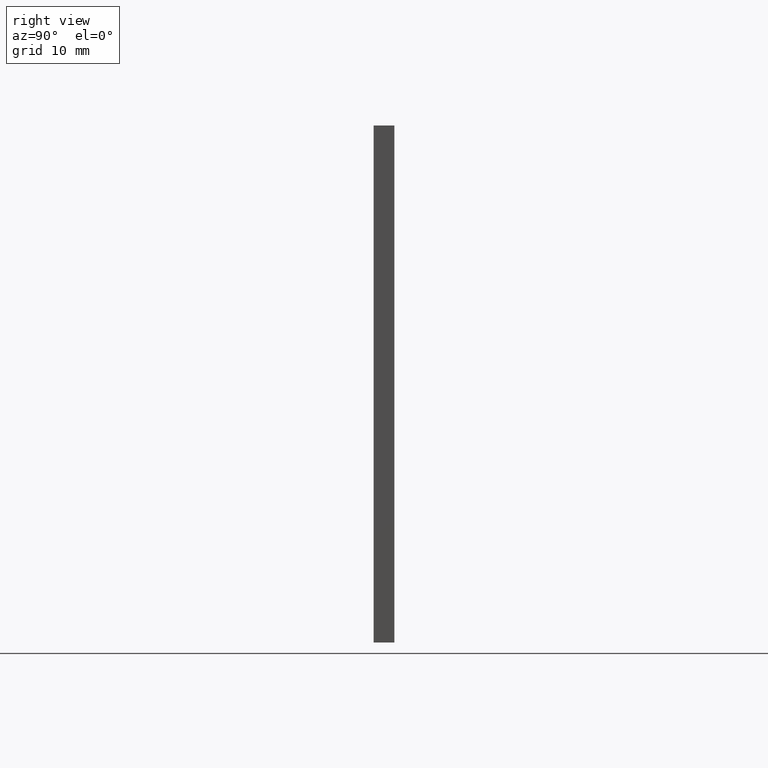
[diagram: clean part render]
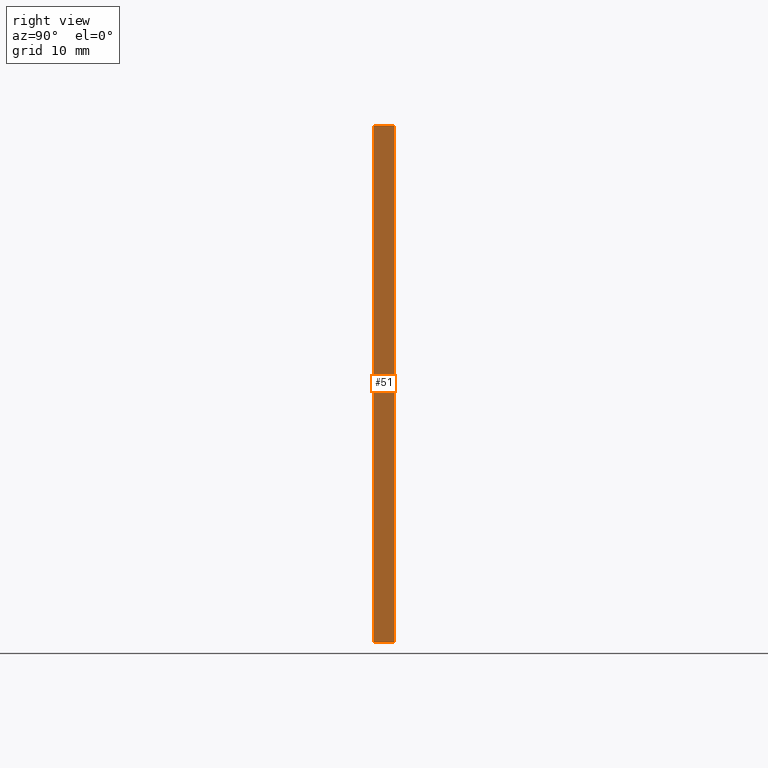
[diagram: same view with one face highlighted and labeled with its STEP entity id]
A machine part, right view. The second image highlights one B-rep face of the part: STEP entity #51.
In plain terms, the highlighted planar face has unit normal (-1, 0, 0).
Its self-contained STEP definition (entity closure, byte-faithful):
#2 = VERTEX_POINT ( 'NONE', #77 ) ;
#8 = PLANE ( 'NONE',  #236 ) ;
#10 = DIRECTION ( 'NONE',  ( 1.387778780781445700E-016, 0.0000000000000000000, 1.000000000000000000 ) ) ;
#16 = CARTESIAN_POINT ( 'NONE',  ( 24.99999999999999600, 0.0000000000000000000, -25.00000000000000000 ) ) ;
#35 = ORIENTED_EDGE ( 'NONE', *, *, #144, .T. ) ;
#39 = ORIENTED_EDGE ( 'NONE', *, *, #170, .F. ) ;
#51 = ADVANCED_FACE ( 'NONE', ( #133 ), #8, .F. ) ;
#54 = CARTESIAN_POINT ( 'NONE',  ( 24.99999999999999600, 2.000000000000000000, -25.00000000000000000 ) ) ;
#61 = VECTOR ( 'NONE', #69, 1000.000000000000000 ) ;
#65 = VERTEX_POINT ( 'NONE', #149 ) ;
#69 = DIRECTION ( 'NONE',  ( -1.387778780781445700E-016, -0.0000000000000000000, -1.000000000000000000 ) ) ;
#77 = CARTESIAN_POINT ( 'NONE',  ( 24.99999999999999600, 0.0000000000000000000, -25.00000000000000000 ) ) ;
#89 = DIRECTION ( 'NONE',  ( -0.0000000000000000000, -1.000000000000000000, -0.0000000000000000000 ) ) ;
#92 = VERTEX_POINT ( 'NONE', #93 ) ;
#93 = CARTESIAN_POINT ( 'NONE',  ( 25.00000000000000400, 0.0000000000000000000, 25.00000000000000000 ) ) ;
#104 = CARTESIAN_POINT ( 'NONE',  ( 24.99999999999999600, 2.000000000000000000, -25.00000000000000000 ) ) ;
#107 = CARTESIAN_POINT ( 'NONE',  ( 24.99999999999999600, 2.000000000000000000, -25.00000000000000000 ) ) ;
#125 = EDGE_CURVE ( 'NONE', #92, #2, #159, .T. ) ;
#129 = EDGE_LOOP ( 'NONE', ( #135, #222, #39, #35 ) ) ;
#133 = FACE_OUTER_BOUND ( 'NONE', #129, .T. ) ;
#135 = ORIENTED_EDGE ( 'NONE', *, *, #125, .T. ) ;
#141 = LINE ( 'NONE', #107, #187 ) ;
#142 = LINE ( 'NONE', #104, #197 ) ;
#144 = EDGE_CURVE ( 'NONE', #65, #92, #158, .T. ) ;
#149 = CARTESIAN_POINT ( 'NONE',  ( 25.00000000000000400, 2.000000000000000000, 25.00000000000000000 ) ) ;
#150 = CARTESIAN_POINT ( 'NONE',  ( 24.99999999999999600, 2.000000000000000000, -25.00000000000000000 ) ) ;
#155 = EDGE_CURVE ( 'NONE', #229, #2, #142, .T. ) ;
#158 = LINE ( 'NONE', #201, #209 ) ;
#159 = LINE ( 'NONE', #16, #61 ) ;
#170 = EDGE_CURVE ( 'NONE', #65, #229, #141, .T. ) ;
#187 = VECTOR ( 'NONE', #188, 1000.000000000000000 ) ;
#188 = DIRECTION ( 'NONE',  ( -1.387778780781445700E-016, -0.0000000000000000000, -1.000000000000000000 ) ) ;
#197 = VECTOR ( 'NONE', #89, 1000.000000000000000 ) ;
#201 = CARTESIAN_POINT ( 'NONE',  ( 25.00000000000000400, 2.000000000000000000, 25.00000000000000000 ) ) ;
#209 = VECTOR ( 'NONE', #219, 1000.000000000000000 ) ;
#219 = DIRECTION ( 'NONE',  ( -0.0000000000000000000, -1.000000000000000000, -0.0000000000000000000 ) ) ;
#222 = ORIENTED_EDGE ( 'NONE', *, *, #155, .F. ) ;
#228 = DIRECTION ( 'NONE',  ( -1.000000000000000000, 0.0000000000000000000, 1.387778780781445700E-016 ) ) ;
#229 = VERTEX_POINT ( 'NONE', #54 ) ;
#236 = AXIS2_PLACEMENT_3D ( 'NONE', #150, #228, #10 ) ;